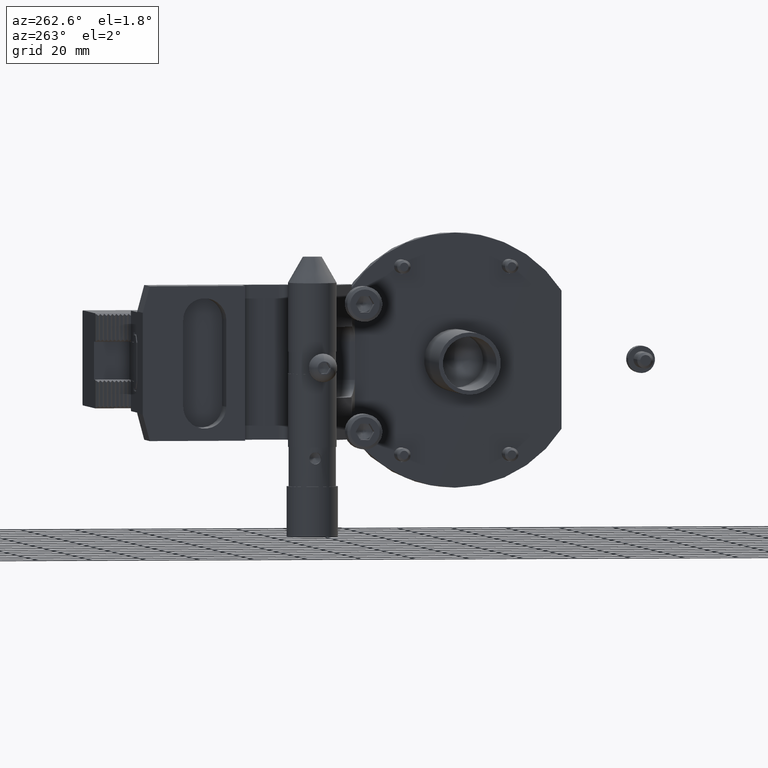
[diagram: clean part render]
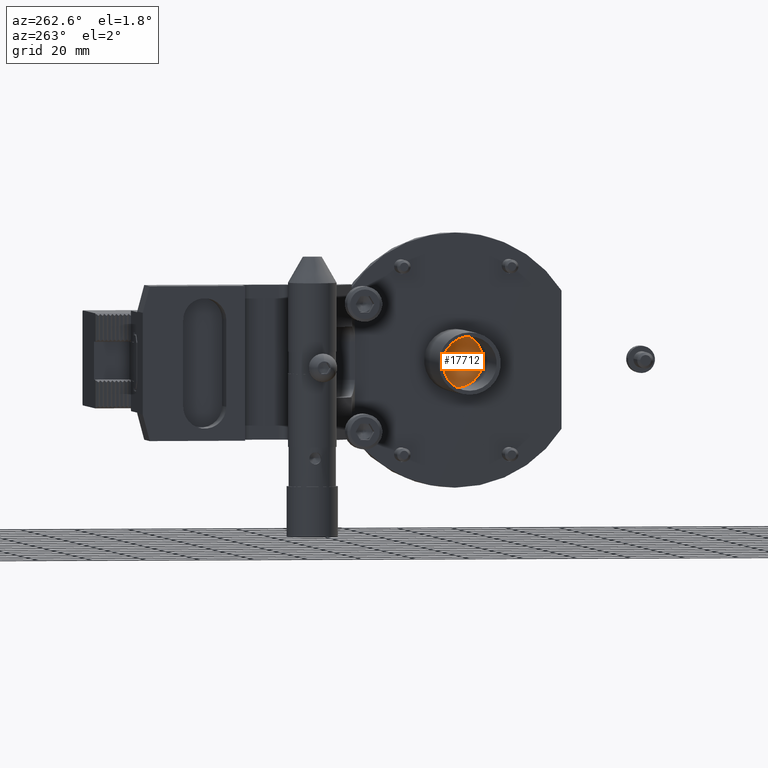
[diagram: same view with one face highlighted and labeled with its STEP entity id]
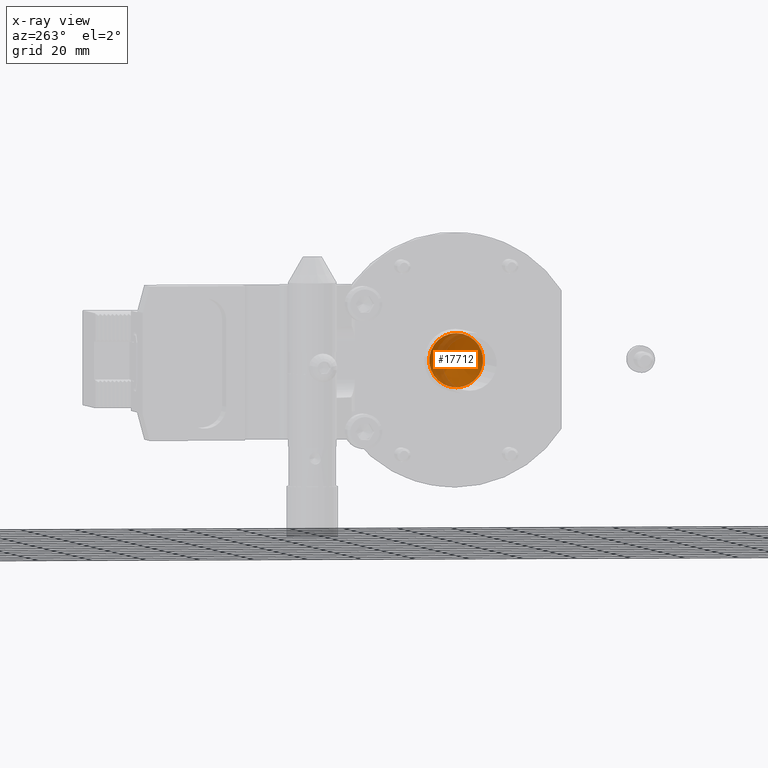
[diagram: x-ray of the same camera — body ghosted, the highlighted face saturated]
A machine part, auxiliary view. The second image highlights one B-rep face of the part: STEP entity #17712.
The next image is the same camera in x-ray: the body ghosted, the highlighted face saturated — about 22% of this face is hidden behind the body in this view.
In plain terms, the highlighted conical surface has half-angle 60 deg.
Its self-contained STEP definition (entity closure, byte-faithful):
#5472=VERTEX_LOOP('',#14016);
#8697=ORIENTED_EDGE('',*,*,#12054,.F.);
#12054=EDGE_CURVE('',#14015,#14015,#14761,.T.);
#14015=VERTEX_POINT('',#27344);
#14016=VERTEX_POINT('',#27346);
#14761=CIRCLE('',#18980,10.);
#15572=EDGE_LOOP('',(#8697));
#16677=FACE_BOUND('',#15572,.T.);
#16678=FACE_BOUND('',#5472,.T.);
#17059=CONICAL_SURFACE('',#18981,10.,1.0471975511966);
#17712=ADVANCED_FACE('',(#16677,#16678),#17059,.F.);
#18980=AXIS2_PLACEMENT_3D('',#27343,#22424,#22425);
#18981=AXIS2_PLACEMENT_3D('',#27345,#22426,#22427);
#22424=DIRECTION('',(1.,0.,0.));
#22425=DIRECTION('',(0.,0.,-1.));
#22426=DIRECTION('',(-1.,0.,0.));
#22427=DIRECTION('',(0.,0.,1.));
#27343=CARTESIAN_POINT('',(-8.,0.,0.));
#27344=CARTESIAN_POINT('',(-8.,0.,-10.));
#27345=CARTESIAN_POINT('',(-8.,0.,0.));
#27346=CARTESIAN_POINT('',(-2.22649730810368,0.,0.));